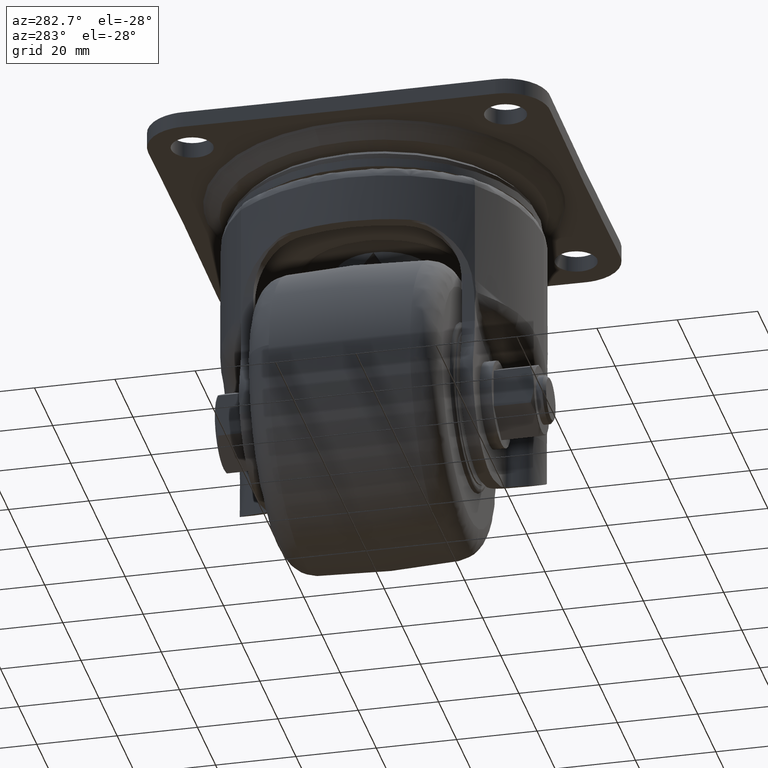
[diagram: clean part render]
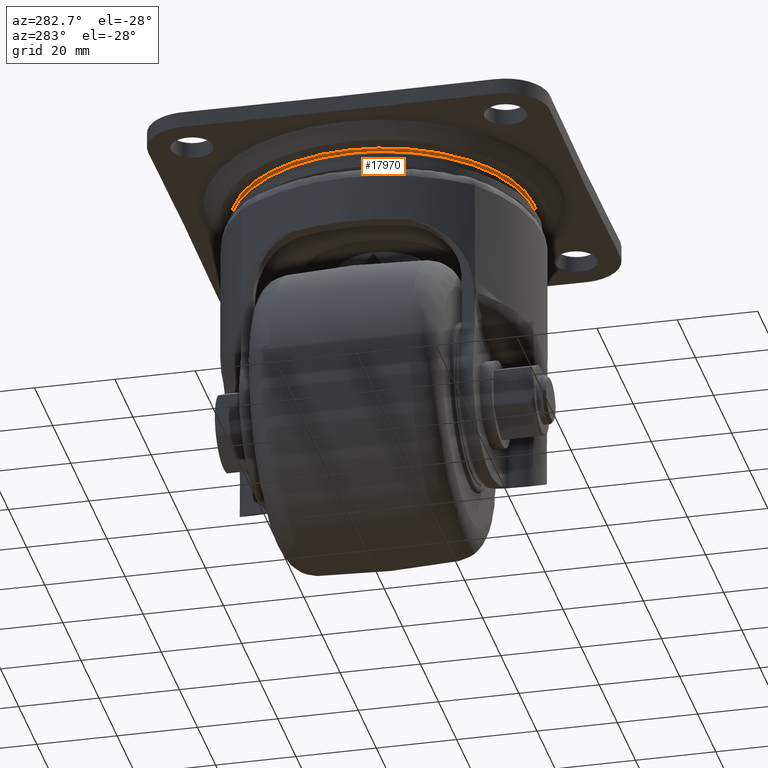
[diagram: same view with one face highlighted and labeled with its STEP entity id]
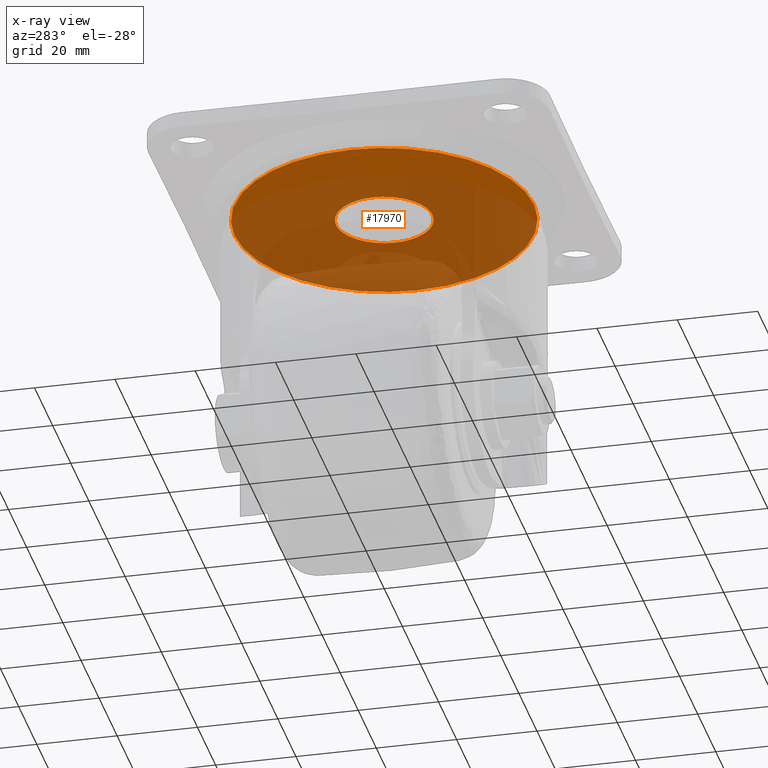
[diagram: x-ray of the same camera — body ghosted, the highlighted face saturated]
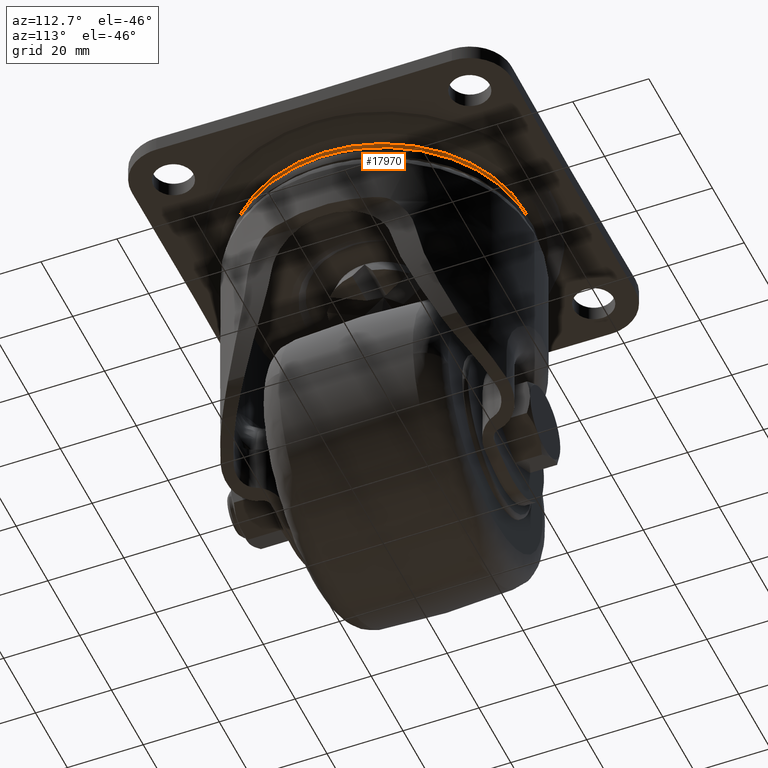
[diagram: same view with one face highlighted and labeled with its STEP entity id]
A machine part, auxiliary view. The second image highlights one B-rep face of the part: STEP entity #17970.
The next image is the same camera in x-ray: the body ghosted, the highlighted face saturated — about 76% of this face is hidden behind the body in this view.
A second angle (auxiliary view) of the same face is appended — the face is thin or edge-on in the first view.
In plain terms, the highlighted face is a freeform B-spline surface patch.
Its self-contained STEP definition (entity closure, byte-faithful):
#17344=CARTESIAN_POINT('',(0.104718426056427,11.999543076769390,-8.280009999999949));
#17345=VERTEX_POINT('',#17344);
#17351=CARTESIAN_POINT('',(12.0,0.0,-8.280007999999899));
#17352=VERTEX_POINT('',#17351);
#17353=CARTESIAN_POINT('',(12.0,0.0,-8.280007999999899));
#17354=CARTESIAN_POINT('',(11.999999999999996,11.895734527064445,-8.280008999999923));
#17355=CARTESIAN_POINT('',(0.104718426056427,11.999543076769395,-8.280009999999949));
#17363=(BOUNDED_CURVE()B_SPLINE_CURVE(2,(#17353,#17354,#17355),.UNSPECIFIED.,.F.,.U.)B_SPLINE_CURVE_WITH_KNOTS((3,3),(0.500000000000000,0.748460105663898),.UNSPECIFIED.)CURVE()GEOMETRIC_REPRESENTATION_ITEM()RATIONAL_B_SPLINE_CURVE((1.0,0.708910879621482,0.996414028097826))REPRESENTATION_ITEM(''));
#17364=EDGE_CURVE('',#17352,#17345,#17363,.T.);
#17366=CARTESIAN_POINT('',(-0.104718426056427,-11.999543076769390,-8.280009999999949));
#17367=VERTEX_POINT('',#17366);
#17368=CARTESIAN_POINT('',(-0.104718426056427,-11.999543076769392,-8.280009999999949));
#17369=CARTESIAN_POINT('',(-0.052360209886391,-11.999999999999996,-8.280009995674512));
#17370=CARTESIAN_POINT('',(-1.381750E-016,-12.0,-8.280009991311161));
#17371=CARTESIAN_POINT('',(12.0,-12.0,-8.280008991311135));
#17372=CARTESIAN_POINT('',(12.0,0.0,-8.280007999999899));
#17380=(BOUNDED_CURVE()B_SPLINE_CURVE(2,(#17368,#17369,#17370,#17371,#17372),.UNSPECIFIED.,.F.,.U.)B_SPLINE_CURVE_WITH_KNOTS((3,2,3),(0.248460105663898,0.250000000000000,0.500000000000000),.UNSPECIFIED.)CURVE()GEOMETRIC_REPRESENTATION_ITEM()RATIONAL_B_SPLINE_CURVE((0.996414028097826,0.998195901565066,1.0,0.707106781186548,1.0))REPRESENTATION_ITEM(''));
#17381=EDGE_CURVE('',#17367,#17352,#17380,.T.);
#17413=CARTESIAN_POINT('',(-12.0,0.0,-8.280007999999899));
#17414=VERTEX_POINT('',#17413);
#17415=CARTESIAN_POINT('',(-12.0,0.0,-8.280007999999899));
#17416=CARTESIAN_POINT('',(-12.0,-11.895734527064453,-8.280008999999923));
#17417=CARTESIAN_POINT('',(-0.104718426056427,-11.999543076769392,-8.280009999999949));
#17425=(BOUNDED_CURVE()B_SPLINE_CURVE(2,(#17415,#17416,#17417),.UNSPECIFIED.,.F.,.U.)B_SPLINE_CURVE_WITH_KNOTS((3,3),(0.0,0.248460105663898),.UNSPECIFIED.)CURVE()GEOMETRIC_REPRESENTATION_ITEM()RATIONAL_B_SPLINE_CURVE((1.0,0.708910879621481,0.996414028097826))REPRESENTATION_ITEM(''));
#17426=EDGE_CURVE('',#17414,#17367,#17425,.T.);
#17428=CARTESIAN_POINT('',(0.104718426056427,11.999543076769395,-8.280009999999949));
#17429=CARTESIAN_POINT('',(0.052360209886389,11.999999999999998,-8.280009995674512));
#17430=CARTESIAN_POINT('',(-3.634002E-015,12.0,-8.280009991311159));
#17431=CARTESIAN_POINT('',(-12.000000000000004,11.999999999999998,-8.280008991311133));
#17432=CARTESIAN_POINT('',(-12.0,0.0,-8.280007999999899));
#17440=(BOUNDED_CURVE()B_SPLINE_CURVE(2,(#17428,#17429,#17430,#17431,#17432),.UNSPECIFIED.,.F.,.U.)B_SPLINE_CURVE_WITH_KNOTS((3,2,3),(0.748460105663898,0.750000000000000,1.0),.UNSPECIFIED.)CURVE()GEOMETRIC_REPRESENTATION_ITEM()RATIONAL_B_SPLINE_CURVE((0.996414028097826,0.998195901565066,1.0,0.707106781186548,1.0))REPRESENTATION_ITEM(''));
#17441=EDGE_CURVE('',#17345,#17414,#17440,.T.);
#17823=CARTESIAN_POINT('',(-21.142705397079439,30.693918860221761,-8.280008000000017));
#17824=VERTEX_POINT('',#17823);
#17838=CARTESIAN_POINT('',(-37.271043000000091,0.0,-8.280008000000100));
#17839=VERTEX_POINT('',#17838);
#17840=CARTESIAN_POINT('',(-37.271043000000091,0.0,-8.280008000000100));
#17841=CARTESIAN_POINT('',(-37.271043000752400,19.584334186417088,-8.280008000000036));
#17842=CARTESIAN_POINT('',(-21.142705397079435,30.693918860221757,-8.280008000000017));
#17850=(BOUNDED_CURVE()B_SPLINE_CURVE(2,(#17840,#17841,#17842),.UNSPECIFIED.,.F.,.U.)B_SPLINE_CURVE_WITH_KNOTS((3,3),(0.0,0.152570046491494),.UNSPECIFIED.)CURVE()GEOMETRIC_REPRESENTATION_ITEM()RATIONAL_B_SPLINE_CURVE((1.0,0.821253071954353,0.860677560885795))REPRESENTATION_ITEM(''));
#17851=EDGE_CURVE('',#17839,#17824,#17850,.T.);
#17853=CARTESIAN_POINT('',(21.142705397079450,-30.693918860221739,-8.280007999999999));
#17854=VERTEX_POINT('',#17853);
#17855=CARTESIAN_POINT('',(21.142705397079450,-30.693918860221739,-8.280008000000001));
#17856=CARTESIAN_POINT('',(11.594366574863546,-37.271043002005875,-8.280008000000006));
#17857=CARTESIAN_POINT('',(1.147593E-009,-37.271043001666129,-8.280008000000024));
#17858=CARTESIAN_POINT('',(-37.271042999604788,-37.271043000573975,-8.280008000000073));
#17859=CARTESIAN_POINT('',(-37.271043000000091,0.0,-8.280008000000100));
#17867=(BOUNDED_CURVE()B_SPLINE_CURVE(2,(#17855,#17856,#17857,#17858,#17859),.UNSPECIFIED.,.F.,.U.)B_SPLINE_CURVE_WITH_KNOTS((3,2,3),(0.652570046491494,0.750000000000000,1.0),.UNSPECIFIED.)CURVE()GEOMETRIC_REPRESENTATION_ITEM()RATIONAL_B_SPLINE_CURVE((0.860677560885795,0.885853709232195,1.0,0.707106781186548,1.0))REPRESENTATION_ITEM(''));
#17868=EDGE_CURVE('',#17854,#17839,#17867,.T.);
#17918=CARTESIAN_POINT('',(37.271043000000091,0.0,-8.280007999999899));
#17919=VERTEX_POINT('',#17918);
#17920=CARTESIAN_POINT('',(37.271043000000091,0.0,-8.280007999999899));
#17921=CARTESIAN_POINT('',(37.271043000752378,-19.584334186417074,-8.280007999999949));
#17922=CARTESIAN_POINT('',(21.142705397079450,-30.693918860221739,-8.280008000000001));
#17930=(BOUNDED_CURVE()B_SPLINE_CURVE(2,(#17920,#17921,#17922),.UNSPECIFIED.,.F.,.U.)B_SPLINE_CURVE_WITH_KNOTS((3,3),(0.500000000000000,0.652570046491494),.UNSPECIFIED.)CURVE()GEOMETRIC_REPRESENTATION_ITEM()RATIONAL_B_SPLINE_CURVE((1.0,0.821253071954353,0.860677560885795))REPRESENTATION_ITEM(''));
#17931=EDGE_CURVE('',#17919,#17854,#17930,.T.);
#17933=CARTESIAN_POINT('',(-21.142705397079435,30.693918860221757,-8.280008000000017));
#17934=CARTESIAN_POINT('',(-11.594366574863544,37.271043002005875,-8.280007999999974));
#17935=CARTESIAN_POINT('',(-1.147603E-009,37.271043001666122,-8.280007999999961));
#17936=CARTESIAN_POINT('',(37.271042999604788,37.271043000573975,-8.280007999999921));
#17937=CARTESIAN_POINT('',(37.271043000000091,0.0,-8.280007999999899));
#17945=(BOUNDED_CURVE()B_SPLINE_CURVE(2,(#17933,#17934,#17935,#17936,#17937),.UNSPECIFIED.,.F.,.U.)B_SPLINE_CURVE_WITH_KNOTS((3,2,3),(0.152570046491494,0.250000000000000,0.500000000000000),.UNSPECIFIED.)CURVE()GEOMETRIC_REPRESENTATION_ITEM()RATIONAL_B_SPLINE_CURVE((0.860677560885795,0.885853709232195,1.0,0.707106781186548,1.0))REPRESENTATION_ITEM(''));
#17946=EDGE_CURVE('',#17824,#17919,#17945,.T.);
#17953=CARTESIAN_POINT('',(40.994420051223067,-40.983144110648688,-8.280007999999899));
#17954=CARTESIAN_POINT('',(-40.994422050597620,-40.983144110648688,-8.280007999999899));
#17955=CARTESIAN_POINT('',(40.994420051223067,40.983146773280787,-8.280007999999899));
#17956=CARTESIAN_POINT('',(-40.994422050597620,40.983146773280787,-8.280007999999899));
#17957=B_SPLINE_SURFACE_WITH_KNOTS('',1,1,((#17953,#17955),(#17954,#17956)),.UNSPECIFIED.,.F.,.F.,.U.,(2,2),(2,2),(0.0,81.988842101820694),(0.0,81.966290883929474),.UNSPECIFIED.);
#17958=ORIENTED_EDGE('',*,*,#17851,.T.);
#17959=ORIENTED_EDGE('',*,*,#17946,.T.);
#17960=ORIENTED_EDGE('',*,*,#17931,.T.);
#17961=ORIENTED_EDGE('',*,*,#17868,.T.);
#17962=EDGE_LOOP('',(#17958,#17959,#17960,#17961));
#17963=FACE_OUTER_BOUND('',#17962,.T.);
#17964=ORIENTED_EDGE('',*,*,#17426,.T.);
#17965=ORIENTED_EDGE('',*,*,#17381,.T.);
#17966=ORIENTED_EDGE('',*,*,#17364,.T.);
#17967=ORIENTED_EDGE('',*,*,#17441,.T.);
#17968=EDGE_LOOP('',(#17964,#17965,#17966,#17967));
#17969=FACE_BOUND('',#17968,.T.);
#17970=ADVANCED_FACE('',(#17963,#17969),#17957,.T.);